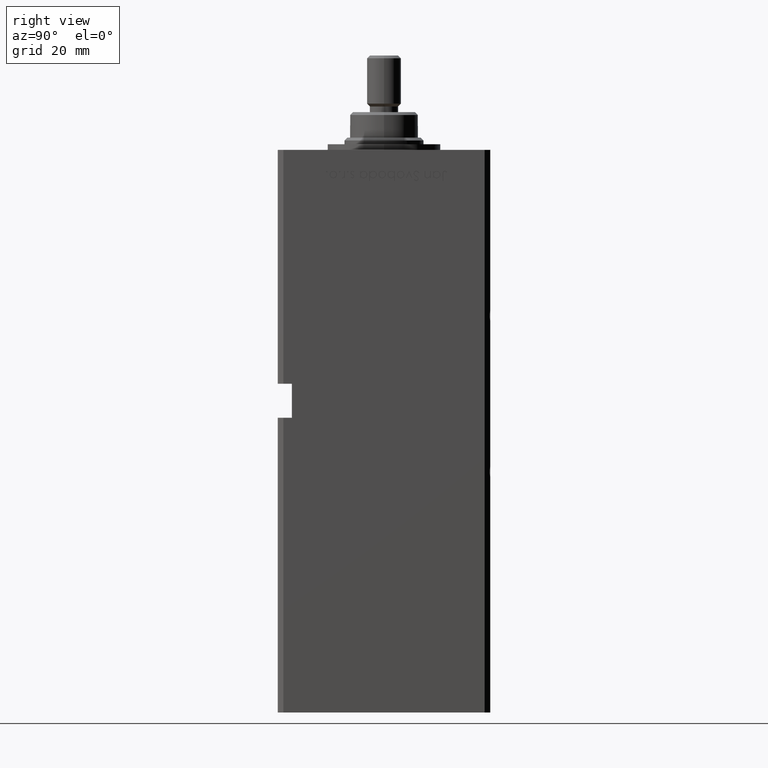
[diagram: clean part render]
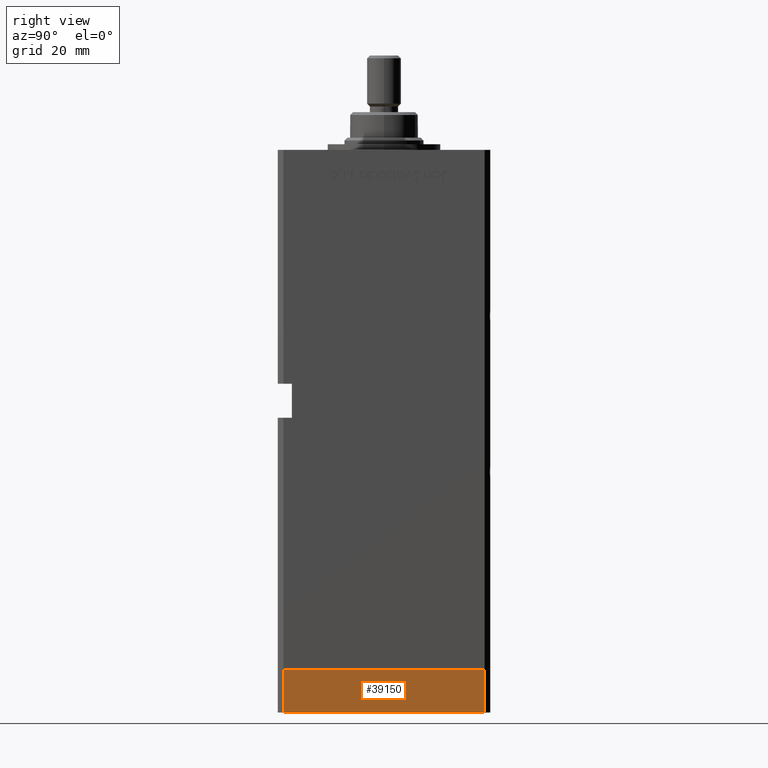
[diagram: same view with one face highlighted and labeled with its STEP entity id]
A machine part, right view. The second image highlights one B-rep face of the part: STEP entity #39150.
In plain terms, the highlighted planar face has unit normal (1, 0, 0).
Its self-contained STEP definition (entity closure, byte-faithful):
#2795 = VERTEX_POINT ( 'NONE', #13199 ) ;
#2892 = CARTESIAN_POINT ( 'NONE',  ( -42.50000000000000000, -35.50000000000000711, -15.00000000000000000 ) ) ;
#3481 = DIRECTION ( 'NONE',  ( 0.000000000000000000, 0.000000000000000000, 1.000000000000000000 ) ) ;
#3790 = ORIENTED_EDGE ( 'NONE', *, *, #27814, .F. ) ;
#7886 = CARTESIAN_POINT ( 'NONE',  ( -42.50000000000000711, 35.49999999999997158, -15.00000000000000000 ) ) ;
#8314 = VECTOR ( 'NONE', #46649, 1000.000000000000000 ) ;
#10352 = DIRECTION ( 'NONE',  ( 0.000000000000000000, 0.000000000000000000, 1.000000000000000000 ) ) ;
#12107 = VECTOR ( 'NONE', #10352, 1000.000000000000000 ) ;
#13199 = CARTESIAN_POINT ( 'NONE',  ( -42.50000000000000000, -35.50000000000000711, 0.000000000000000000 ) ) ;
#14283 = EDGE_CURVE ( 'NONE', #46548, #15629, #44472, .T. ) ;
#14864 = LINE ( 'NONE', #53059, #35809 ) ;
#15002 = LINE ( 'NONE', #2892, #12107 ) ;
#15587 = CARTESIAN_POINT ( 'NONE',  ( -42.50000000000000711, 35.49999999999997158, -15.00000000000000000 ) ) ;
#15629 = VERTEX_POINT ( 'NONE', #28519 ) ;
#18191 = CARTESIAN_POINT ( 'NONE',  ( -42.50000000000000000, -35.50000000000000711, -15.00000000000000000 ) ) ;
#19002 = DIRECTION ( 'NONE',  ( 9.773090005503140331E-17, -1.000000000000000000, 0.000000000000000000 ) ) ;
#21653 = CARTESIAN_POINT ( 'NONE',  ( -42.50000000000000711, 35.49999999999997158, 0.000000000000000000 ) ) ;
#26255 = VERTEX_POINT ( 'NONE', #18191 ) ;
#27400 = ORIENTED_EDGE ( 'NONE', *, *, #36953, .T. ) ;
#27814 = EDGE_CURVE ( 'NONE', #15629, #2795, #29905, .T. ) ;
#28519 = CARTESIAN_POINT ( 'NONE',  ( -42.50000000000000711, 35.49999999999997158, 0.000000000000000000 ) ) ;
#29905 = LINE ( 'NONE', #21653, #8314 ) ;
#35392 = EDGE_CURVE ( 'NONE', #46548, #26255, #14864, .T. ) ;
#35609 = EDGE_LOOP ( 'NONE', ( #3790, #40321, #47390, #27400 ) ) ;
#35809 = VECTOR ( 'NONE', #19002, 1000.000000000000000 ) ;
#36953 = EDGE_CURVE ( 'NONE', #26255, #2795, #15002, .T. ) ;
#37324 = DIRECTION ( 'NONE',  ( 9.773090005503140331E-17, -1.000000000000000000, 0.000000000000000000 ) ) ;
#37607 = PLANE ( 'NONE',  #44683 ) ;
#39150 = ADVANCED_FACE ( 'NONE', ( #45566 ), #37607, .T. ) ;
#39649 = VECTOR ( 'NONE', #3481, 1000.000000000000000 ) ;
#40321 = ORIENTED_EDGE ( 'NONE', *, *, #14283, .F. ) ;
#44132 = CARTESIAN_POINT ( 'NONE',  ( -42.50000000000000711, 35.49999999999997158, -15.00000000000000000 ) ) ;
#44472 = LINE ( 'NONE', #15587, #39649 ) ;
#44683 = AXIS2_PLACEMENT_3D ( 'NONE', #7886, #49965, #37324 ) ;
#45566 = FACE_OUTER_BOUND ( 'NONE', #35609, .T. ) ;
#46548 = VERTEX_POINT ( 'NONE', #44132 ) ;
#46649 = DIRECTION ( 'NONE',  ( 9.773090005503140331E-17, -1.000000000000000000, 0.000000000000000000 ) ) ;
#47390 = ORIENTED_EDGE ( 'NONE', *, *, #35392, .T. ) ;
#49965 = DIRECTION ( 'NONE',  ( -1.000000000000000000, -9.773090005503140331E-17, 0.000000000000000000 ) ) ;
#53059 = CARTESIAN_POINT ( 'NONE',  ( -42.50000000000000711, 35.49999999999997158, -15.00000000000000000 ) ) ;